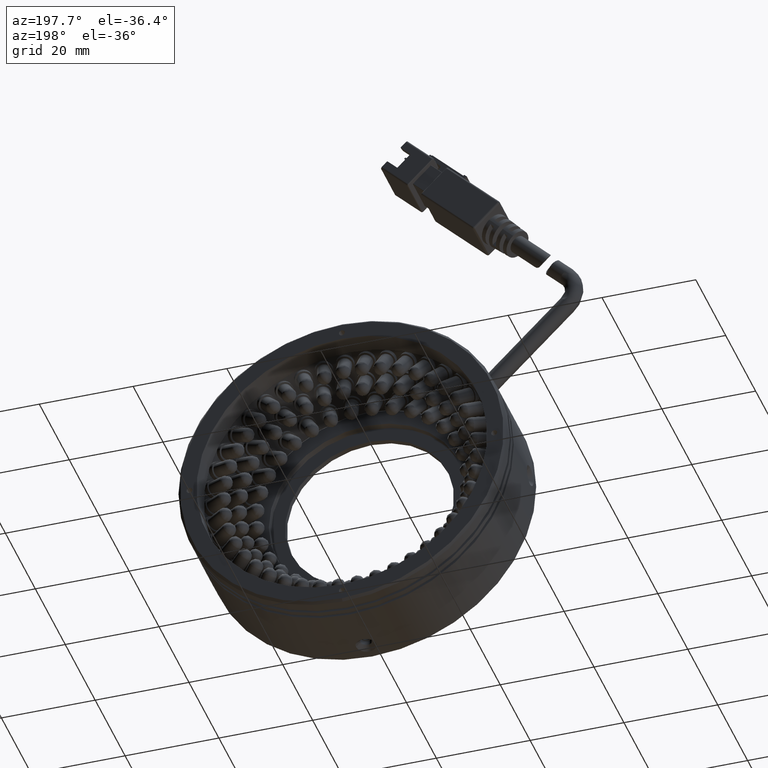
[diagram: clean part render]
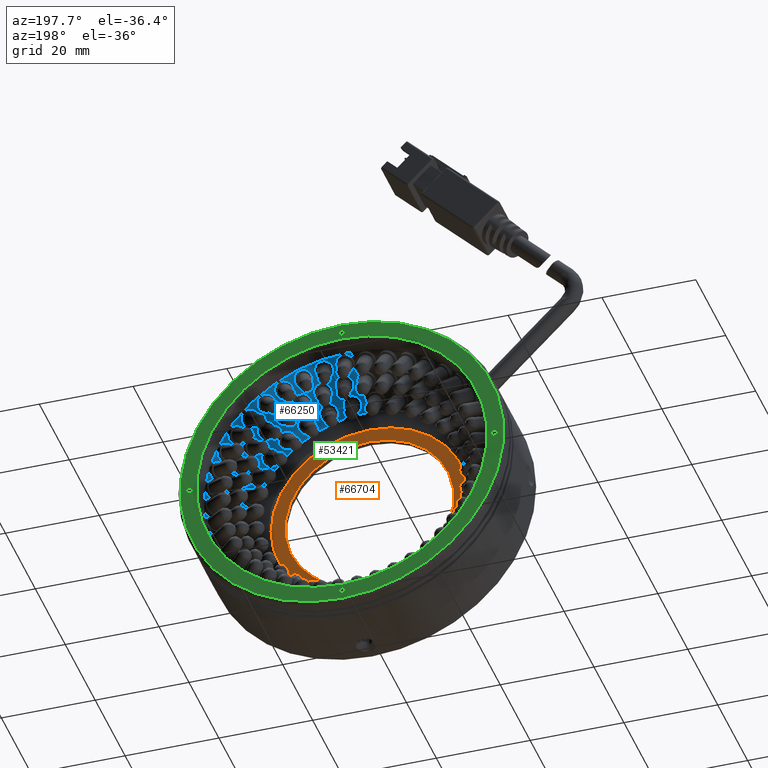
[diagram: same view with three faces highlighted in distinct colors, each labeled with its STEP entity id]
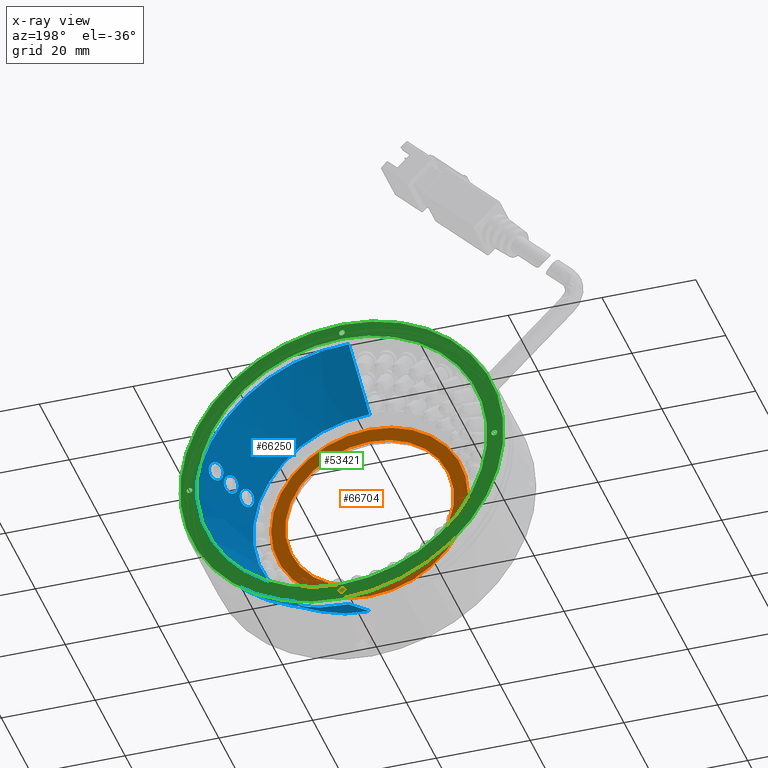
[diagram: x-ray of the same camera — body ghosted, the three highlighted faces saturated]
A machine part, auxiliary view with three faces highlighted in distinct colors.
The next image is the same camera in x-ray (body ghosted, the three faces saturated) — at least one of them is partly hidden behind the body in this view.
Their STEP definitions:

[orange] entity #66704 — the highlighted planar face has unit normal (0, -1, 0).
#512 = ORIENTED_EDGE ( 'NONE', *, *, #79822, .T. ) ;
#1383 = FACE_BOUND ( 'NONE', #87827, .T. ) ;
#4541 = CIRCLE ( 'NONE', #94823, 18.00000000000000400 ) ;
#6738 = CARTESIAN_POINT ( 'NONE',  ( -37.22376356038467500, -24.03693679055957900, 4.897574515044668800 ) ) ;
#10115 = CARTESIAN_POINT ( 'NONE',  ( -37.22376356038467500, -24.03693679055957900, -34.10242548495533300 ) ) ;
#10142 = CARTESIAN_POINT ( 'NONE',  ( -37.22376356038467500, -24.03693679055957900, -13.10242548495533300 ) ) ;
#13425 = EDGE_LOOP ( 'NONE', ( #83057, #88471 ) ) ;
#15766 = AXIS2_PLACEMENT_3D ( 'NONE', #41581, #97655, #49608 ) ;
#17502 = CARTESIAN_POINT ( 'NONE',  ( -37.22376356038467500, -24.03693679055957900, -13.10242548495533300 ) ) ;
#18263 = DIRECTION ( 'NONE',  ( 0.0000000000000000000, 0.0000000000000000000, -1.000000000000000000 ) ) ;
#21164 = CARTESIAN_POINT ( 'NONE',  ( -37.22376356038467500, -24.03693679055957900, 7.897574515044664300 ) ) ;
#24764 = VERTEX_POINT ( 'NONE', #10115 ) ;
#25601 = DIRECTION ( 'NONE',  ( 0.0000000000000000000, 0.0000000000000000000, -1.000000000000000000 ) ) ;
#28492 = CARTESIAN_POINT ( 'NONE',  ( -37.22376356038467500, -24.03693679055957900, -13.10242548495533300 ) ) ;
#35521 = AXIS2_PLACEMENT_3D ( 'NONE', #28492, #84573, #36556 ) ;
#36556 = DIRECTION ( 'NONE',  ( 0.0000000000000000000, 0.0000000000000000000, -1.000000000000000000 ) ) ;
#37112 = CARTESIAN_POINT ( 'NONE',  ( -58.22376356038467500, -24.03693679055957900, -13.10242548495533300 ) ) ;
#41494 = EDGE_CURVE ( 'NONE', #65738, #24764, #84756, .T. ) ;
#41581 = CARTESIAN_POINT ( 'NONE',  ( -37.22376356038467500, -24.03693679055957900, -13.10242548495533300 ) ) ;
#42549 = ORIENTED_EDGE ( 'NONE', *, *, #66487, .T. ) ;
#45172 = DIRECTION ( 'NONE',  ( 0.0000000000000000000, -0.0000000000000000000, -1.000000000000000000 ) ) ;
#46221 = AXIS2_PLACEMENT_3D ( 'NONE', #37112, #93161, #45172 ) ;
#47258 = CARTESIAN_POINT ( 'NONE',  ( -37.22376356038467500, -24.03693679055957900, -31.10242548495533700 ) ) ;
#49608 = DIRECTION ( 'NONE',  ( 0.0000000000000000000, 0.0000000000000000000, -1.000000000000000000 ) ) ;
#52876 = PLANE ( 'NONE',  #46221 ) ;
#58350 = CIRCLE ( 'NONE', #15766, 20.99999999999999600 ) ;
#61268 = VERTEX_POINT ( 'NONE', #47258 ) ;
#62929 = FACE_OUTER_BOUND ( 'NONE', #13425, .T. ) ;
#65414 = EDGE_CURVE ( 'NONE', #24764, #65738, #58350, .T. ) ;
#65738 = VERTEX_POINT ( 'NONE', #21164 ) ;
#66341 = DIRECTION ( 'NONE',  ( -0.0000000000000000000, -1.000000000000000000, -0.0000000000000000000 ) ) ;
#66357 = AXIS2_PLACEMENT_3D ( 'NONE', #17502, #73572, #25601 ) ;
#66487 = EDGE_CURVE ( 'NONE', #61268, #89555, #82863, .T. ) ;
#66704 = ADVANCED_FACE ( 'NONE', ( #1383, #62929 ), #52876, .F. ) ;
#73572 = DIRECTION ( 'NONE',  ( -0.0000000000000000000, -1.000000000000000000, -0.0000000000000000000 ) ) ;
#79822 = EDGE_CURVE ( 'NONE', #89555, #61268, #4541, .T. ) ;
#82863 = CIRCLE ( 'NONE', #66357, 18.00000000000000400 ) ;
#83057 = ORIENTED_EDGE ( 'NONE', *, *, #65414, .F. ) ;
#84573 = DIRECTION ( 'NONE',  ( -0.0000000000000000000, -1.000000000000000000, -0.0000000000000000000 ) ) ;
#84756 = CIRCLE ( 'NONE', #35521, 20.99999999999999600 ) ;
#87827 = EDGE_LOOP ( 'NONE', ( #42549, #512 ) ) ;
#88471 = ORIENTED_EDGE ( 'NONE', *, *, #41494, .F. ) ;
#89555 = VERTEX_POINT ( 'NONE', #6738 ) ;
#93161 = DIRECTION ( 'NONE',  ( 0.0000000000000000000, -1.000000000000000000, 0.0000000000000000000 ) ) ;
#94823 = AXIS2_PLACEMENT_3D ( 'NONE', #10142, #66341, #18263 ) ;
#97655 = DIRECTION ( 'NONE',  ( -0.0000000000000000000, -1.000000000000000000, -0.0000000000000000000 ) ) ;

[blue] entity #66250 — the highlighted conical surface has half-angle 30 deg.
#119 = CARTESIAN_POINT ( 'NONE',  ( -8.739880947575665400, -13.87750774357599000, -1.826419727712608400 ) ) ;
#281 = EDGE_CURVE ( 'NONE', #25436, #42817, #69618, .T. ) ;
#825 = CARTESIAN_POINT ( 'NONE',  ( -12.60728330870478300, -22.80869779404919100, -6.531338884192630100 ) ) ;
#1179 = CARTESIAN_POINT ( 'NONE',  ( -11.07150132760119600, -20.45683518125358800, -7.082872525403971900 ) ) ;
#2281 = EDGE_LOOP ( 'NONE', ( #47479, #41423 ) ) ;
#3036 = CARTESIAN_POINT ( 'NONE',  ( -8.867900524240134500, -15.63189835998557300, -4.535582452737599200 ) ) ;
#3387 = CARTESIAN_POINT ( 'NONE',  ( -10.18362075459634900, -16.76538536355328200, -2.713159425782246000 ) ) ;
#3450 = CARTESIAN_POINT ( 'NONE',  ( -37.22376356038467500, -23.93693679055959600, -37.92922040419845300 ) ) ;
#3736 = CARTESIAN_POINT ( 'NONE',  ( -10.92901948919881300, -18.71256114829929400, -3.946272673589756000 ) ) ;
#5179 = CARTESIAN_POINT ( 'NONE',  ( -8.511816934480458800, -14.96211874956041400, -4.376524862079755000 ) ) ;
#5192 = CARTESIAN_POINT ( 'NONE',  ( -12.46361717523232700, -21.11328696526424100, -3.779867101260965700 ) ) ;
#5254 = CARTESIAN_POINT ( 'NONE',  ( -10.80619209128891200, -18.90055973734911300, -4.656570934325704200 ) ) ;
#5523 = CARTESIAN_POINT ( 'NONE',  ( -6.951535951564639300, -12.62559690431884400, -4.924300941285840900 ) ) ;
#5535 = CARTESIAN_POINT ( 'NONE',  ( -13.01137501898977100, -22.78664006245179500, -5.129927685971869000 ) ) ;
#5600 = CARTESIAN_POINT ( 'NONE',  ( -9.411355381770601300, -17.38045875003232200, -6.384763199444242000 ) ) ;
#5947 = CARTESIAN_POINT ( 'NONE',  ( -8.796200044574497700, -15.74692090412090700, -5.015198748371726200 ) ) ;
#6021 = CIRCLE ( 'NONE', #52419, 32.82679491924312000 ) ;
#6848 = DIRECTION ( 'NONE',  ( 0.0000000000000000000, 0.0000000000000000000, -1.000000000000000000 ) ) ;
#7833 = CARTESIAN_POINT ( 'NONE',  ( -7.238289563124720200, -11.87646773622310500, -2.543890634460603800 ) ) ;
#8177 = CARTESIAN_POINT ( 'NONE',  ( -8.853455903908024300, -14.17965397209994400, -2.014162149194320200 ) ) ;
#8874 = CARTESIAN_POINT ( 'NONE',  ( -12.43871005122651700, -22.65560785068989000, -6.828651439797508400 ) ) ;
#9217 = CARTESIAN_POINT ( 'NONE',  ( -10.97527357027851700, -20.19557052773370400, -6.832326301883228800 ) ) ;
#10803 = EDGE_CURVE ( 'NONE', #64924, #83533, #67103, .T. ) ;
#11367 = CARTESIAN_POINT ( 'NONE',  ( -10.44196119625171100, -17.19071551909038900, -2.725879883457394700 ) ) ;
#11368 = CARTESIAN_POINT ( 'NONE',  ( -10.83491478007536900, -18.88318347884826300, -4.535604529954079000 ) ) ;
#11727 = CARTESIAN_POINT ( 'NONE',  ( -10.88645623700842300, -18.83729043205628200, -4.293769604146040000 ) ) ;
#12391 = EDGE_LOOP ( 'NONE', ( #33101, #85196 ) ) ;
#12900 = CARTESIAN_POINT ( 'NONE',  ( -11.02906259333316500, -19.63050069349715400, -5.365546695313018900 ) ) ;
#13232 = CARTESIAN_POINT ( 'NONE',  ( -8.334948660891084800, -14.81437667154405300, -4.671679628198138100 ) ) ;
#13242 = CARTESIAN_POINT ( 'NONE',  ( -12.64151798896770500, -21.43758115925772500, -3.838758719528584200 ) ) ;
#13300 = CARTESIAN_POINT ( 'NONE',  ( -10.83491478007536900, -18.88318347884826300, -4.535604529954079000 ) ) ;
#13582 = CARTESIAN_POINT ( 'NONE',  ( -6.860987213434952100, -12.36063885575566700, -4.675612541663583400 ) ) ;
#13589 = CARTESIAN_POINT ( 'NONE',  ( -12.95929705797020200, -22.88956307841174700, -5.485859871323306400 ) ) ;
#13647 = CARTESIAN_POINT ( 'NONE',  ( -9.233074450426379100, -17.05637292751037400, -6.325956600875479700 ) ) ;
#13985 = ORIENTED_EDGE ( 'NONE', *, *, #31011, .F. ) ;
#13998 = CARTESIAN_POINT ( 'NONE',  ( -8.840998057851202000, -15.64817344529392400, -4.657118569549587600 ) ) ;
#15933 = CARTESIAN_POINT ( 'NONE',  ( -7.428229221761161400, -12.01627222088110100, -2.253024514914973700 ) ) ;
#16284 = CARTESIAN_POINT ( 'NONE',  ( -8.928822298869880200, -14.45383034152049000, -2.257863045922480400 ) ) ;
#17005 = CARTESIAN_POINT ( 'NONE',  ( -12.12493232793792500, -22.29038655443641300, -7.225419750444430600 ) ) ;
#17327 = CARTESIAN_POINT ( 'NONE',  ( -10.91777981333198300, -19.97760580449259700, -6.537112049436104600 ) ) ;
#19125 = CARTESIAN_POINT ( 'NONE',  ( -9.007377143115451900, -15.61833281883109800, -4.060264868000970800 ) ) ;
#19484 = CARTESIAN_POINT ( 'NONE',  ( -10.60975398451057200, -17.51246660540419200, -2.806969973435182300 ) ) ;
#19837 = CARTESIAN_POINT ( 'NONE',  ( -10.83491478007536900, -18.88318347884826300, -4.535604529954079000 ) ) ;
#20350 = CARTESIAN_POINT ( 'NONE',  ( -37.22376356038467500, -10.08053033000837900, -13.10242548495533300 ) ) ;
#20988 = CARTESIAN_POINT ( 'NONE',  ( -11.15103831716061600, -19.65605408660995600, -5.013648408069423500 ) ) ;
#21310 = CARTESIAN_POINT ( 'NONE',  ( -8.008773047020374800, -14.45702297491176600, -5.065539900504439300 ) ) ;
#21323 = CARTESIAN_POINT ( 'NONE',  ( -12.79003052456387300, -21.75501594575085200, -3.964576743777202200 ) ) ;
#21381 = CARTESIAN_POINT ( 'NONE',  ( -10.64915194359016000, -18.88204477016092400, -5.127285817610521200 ) ) ;
#21649 = CARTESIAN_POINT ( 'NONE',  ( -6.810231198816904200, -12.13824062233152500, -4.382469374822384200 ) ) ;
#21718 = CARTESIAN_POINT ( 'NONE',  ( -9.077885832890368400, -16.74290330197431900, -6.198308452295618700 ) ) ;
#21931 = VERTEX_POINT ( 'NONE', #26710 ) ;
#24032 = CARTESIAN_POINT ( 'NONE',  ( -7.781609619073970300, -12.35710932981634300, -1.868096196349380500 ) ) ;
#24384 = CARTESIAN_POINT ( 'NONE',  ( -8.963272227565497000, -14.68613589355478600, -2.545652972331773300 ) ) ;
#25080 = CARTESIAN_POINT ( 'NONE',  ( -11.72513467833159200, -21.70573010128096300, -7.462122455044579700 ) ) ;
#25436 = VERTEX_POINT ( 'NONE', #11368 ) ;
#25438 = CARTESIAN_POINT ( 'NONE',  ( -10.90112476634757000, -19.80673047929643700, -6.203944362538209100 ) ) ;
#26105 = VECTOR ( 'NONE', #34883, 1000.000000000000000 ) ;
#26710 = CARTESIAN_POINT ( 'NONE',  ( -8.857851851272080500, -15.04536951588221600, -3.458917499663762400 ) ) ;
#27233 = CARTESIAN_POINT ( 'NONE',  ( -9.156714573996810100, -15.68216290976813100, -3.722509882268100900 ) ) ;
#27576 = CARTESIAN_POINT ( 'NONE',  ( -10.74788259490611800, -17.82785498399299200, -2.954897975873665800 ) ) ;
#28839 = VERTEX_POINT ( 'NONE', #35024 ) ;
#29045 = CARTESIAN_POINT ( 'NONE',  ( -8.827947764434654200, -15.06354256114486600, -3.579476012543592500 ) ) ;
#29056 = CARTESIAN_POINT ( 'NONE',  ( -11.30685288458715800, -19.74168720096015400, -4.686348423263758000 ) ) ;
#29392 = CARTESIAN_POINT ( 'NONE',  ( -7.599676135218410300, -13.87818598977165500, -5.300515232762707600 ) ) ;
#29402 = CARTESIAN_POINT ( 'NONE',  ( -12.90522073083825200, -22.05589059023470000, -4.153402780323741400 ) ) ;
#29463 = CARTESIAN_POINT ( 'NONE',  ( -10.49920391182877700, -18.79308332620420800, -5.456418537542369100 ) ) ;
#29742 = CARTESIAN_POINT ( 'NONE',  ( -6.801093587351917200, -11.96244364711914100, -4.051600957357604400 ) ) ;
#29813 = CARTESIAN_POINT ( 'NONE',  ( -8.950786361775472600, -16.44909785128471600, -6.006050396940844700 ) ) ;
#30053 = CARTESIAN_POINT ( 'NONE',  ( -6.884320410707353200, -11.79803620081498600, -3.458895674143138300 ) ) ;
#30670 = VERTEX_POINT ( 'NONE', #30053 ) ;
#31011 = EDGE_CURVE ( 'NONE', #64924, #42629, #87564, .T. ) ;
#32089 = CARTESIAN_POINT ( 'NONE',  ( -8.217912884373916400, -12.91940937831117600, -1.642070366619402300 ) ) ;
#32423 = CARTESIAN_POINT ( 'NONE',  ( -8.957203326535331900, -14.87116679829278700, -2.871519680230999700 ) ) ;
#33101 = ORIENTED_EDGE ( 'NONE', *, *, #281, .T. ) ;
#33107 = ORIENTED_EDGE ( 'NONE', *, *, #39610, .T. ) ;
#33142 = CARTESIAN_POINT ( 'NONE',  ( -11.47363247211986700, -21.27624040369975900, -7.451237633165088200 ) ) ;
#33292 = B_SPLINE_CURVE_WITH_KNOTS ( 'NONE', 3,
 ( #52898, #100959, #12900, #68983, #20988, #77058, #29056, #85149, #37131, #93184, #45196, #101309, #53249, #5192, #61303, #13242, #69319, #21323, #77402, #29402, #85499, #37465, #93548, #45555, #101646, #53590, #5535, #61640, #13589, #69667 ),
 .UNSPECIFIED., .F., .F.,
 ( 4, 2, 2, 2, 2, 2, 2, 2, 2, 2, 2, 2, 2, 2, 4 ),
 ( 0.005940476472405644200, 0.006311757764212208600, 0.006683039056018772900, 0.007054320347825336400, 0.007425601639631900800, 0.008168164223245028700, 0.008910726806858157400, 0.009282008098664723500, 0.009653289390471289600, 0.01002457068227785600, 0.01039585197408442000, 0.01076713326589098600, 0.01113841455769755100, 0.01150969584950411700, 0.01188097714131068300 ),
 .UNSPECIFIED. ) ;
#33494 = CARTESIAN_POINT ( 'NONE',  ( -10.92734173252657800, -19.69207227018145500, -5.851376381872256600 ) ) ;
#34883 = DIRECTION ( 'NONE',  ( 6.123233995736701900E-017, 0.8660254037844417100, -0.4999999999999947800 ) ) ;
#35024 = CARTESIAN_POINT ( 'NONE',  ( -12.93183671224410200, -22.90609988664232000, -5.607242029885863800 ) ) ;
#35243 = DIRECTION ( 'NONE',  ( 0.0000000000000000000, 0.8660254037844417100, 0.4999999999999947800 ) ) ;
#35325 = CARTESIAN_POINT ( 'NONE',  ( -9.334321844905343100, -15.80407495720009200, -3.419534017201082000 ) ) ;
#35670 = CARTESIAN_POINT ( 'NONE',  ( -10.84937954993924900, -18.11929515729573100, -3.161316746830988000 ) ) ;
#36631 = FACE_BOUND ( 'NONE', #81548, .T. ) ;
#37131 = CARTESIAN_POINT ( 'NONE',  ( -11.49125345438035200, -19.88525599283857700, -4.393720439474996900 ) ) ;
#37456 = CARTESIAN_POINT ( 'NONE',  ( -7.346692182824760700, -13.44960948789047500, -5.289784670401299800 ) ) ;
#37465 = CARTESIAN_POINT ( 'NONE',  ( -12.98326276377082600, -22.32809338902466200, -4.398556008482399800 ) ) ;
#37529 = CARTESIAN_POINT ( 'NONE',  ( -10.32630059893413100, -18.64276716343718800, -5.752636849745449900 ) ) ;
#37802 = CARTESIAN_POINT ( 'NONE',  ( -6.835062941288971000, -11.84269979061580900, -3.701426713261017000 ) ) ;
#37871 = CARTESIAN_POINT ( 'NONE',  ( -8.857560532325147000, -16.18589689547963700, -5.756448471637813900 ) ) ;
#39406 = VECTOR ( 'NONE', #35243, 1000.000000000000000 ) ;
#39610 = EDGE_CURVE ( 'NONE', #83533, #52682, #63264, .T. ) ;
#40165 = CARTESIAN_POINT ( 'NONE',  ( -8.476855933807440700, -13.34435468505563100, -1.654763280658904800 ) ) ;
#40494 = CARTESIAN_POINT ( 'NONE',  ( -8.911686564592518100, -14.99792439189853600, -3.217892473057579700 ) ) ;
#40656 = B_SPLINE_CURVE_WITH_KNOTS ( 'NONE', 3,
 ( #3036, #51050, #67224, #19125, #75236, #27233, #83308, #35325, #91332, #43409, #99473, #51409, #3387, #59489, #11367, #67553, #19484, #75591, #27576, #83636, #35670, #91679, #43727, #99827, #51743, #3736, #59829, #11727, #67884, #19837 ),
 .UNSPECIFIED., .F., .F.,
 ( 4, 2, 2, 2, 2, 2, 2, 2, 2, 2, 2, 2, 2, 2, 4 ),
 ( 0.005940255759117621400, 0.006311523052970052300, 0.006682790346822484000, 0.007054057640674914900, 0.007425324934527346600, 0.008167859522232217100, 0.008910394109937089200, 0.009281661403789521000, 0.009652928697641952700, 0.01002419599149438600, 0.01039546328534681800, 0.01076673057919925000, 0.01113799787305168300, 0.01150926516690411700, 0.01188053246075654800 ),
 .UNSPECIFIED. ) ;
#40870 = CARTESIAN_POINT ( 'NONE',  ( -12.79617469199723200, -22.91706480712437600, -6.083747285442243900 ) ) ;
#41213 = CARTESIAN_POINT ( 'NONE',  ( -11.30267126945376100, -20.95644652846260300, -7.368992416169615600 ) ) ;
#41423 = ORIENTED_EDGE ( 'NONE', *, *, #79162, .T. ) ;
#41560 = CARTESIAN_POINT ( 'NONE',  ( -10.97139746822790900, -19.65084598282548400, -5.607219600601271600 ) ) ;
#42170 = EDGE_CURVE ( 'NONE', #21931, #30670, #59532, .T. ) ;
#42629 = VERTEX_POINT ( 'NONE', #67846 ) ;
#42817 = VERTEX_POINT ( 'NONE', #94463 ) ;
#43409 = CARTESIAN_POINT ( 'NONE',  ( -9.602563064129928000, -16.04281922991336300, -3.074596707568936900 ) ) ;
#43629 = CARTESIAN_POINT ( 'NONE',  ( -37.22376356038467500, -10.08053033000837900, -13.10242548495533300 ) ) ;
#43727 = CARTESIAN_POINT ( 'NONE',  ( -10.91284621023043600, -18.38033501642151200, -3.422590549674593400 ) ) ;
#45186 = CARTESIAN_POINT ( 'NONE',  ( -8.711886608792658700, -15.06317891142425000, -3.932127785650084500 ) ) ;
#45196 = CARTESIAN_POINT ( 'NONE',  ( -11.83736247457644300, -20.23103244609193000, -4.006532682998652300 ) ) ;
#45546 = CARTESIAN_POINT ( 'NONE',  ( -7.176764788814402600, -13.12911087712302700, -5.208219379599232600 ) ) ;
#45555 = CARTESIAN_POINT ( 'NONE',  ( -13.02147757649042100, -22.55766394377527100, -4.688057890386377700 ) ) ;
#45613 = CARTESIAN_POINT ( 'NONE',  ( -10.00604419361575200, -18.28163047711662500, -6.147928757920592300 ) ) ;
#45885 = CARTESIAN_POINT ( 'NONE',  ( -6.884320410707353200, -11.79803620081498600, -3.458895674143138300 ) ) ;
#45961 = CARTESIAN_POINT ( 'NONE',  ( -8.803609847323453900, -15.96561677761261500, -5.462281588311950200 ) ) ;
#46461 = CARTESIAN_POINT ( 'NONE',  ( -7.028551355033677300, -11.78128089491210200, -2.985115146024835700 ) ) ;
#47479 = ORIENTED_EDGE ( 'NONE', *, *, #42170, .T. ) ;
#48186 = CARTESIAN_POINT ( 'NONE',  ( -8.644633349719949700, -13.66616273240122800, -1.735624884399956900 ) ) ;
#48537 = CARTESIAN_POINT ( 'NONE',  ( -8.857851851272080500, -15.04536951588221600, -3.458917499663762400 ) ) ;
#48548 = CARTESIAN_POINT ( 'NONE',  ( -12.93183671224410200, -22.90609988664232000, -5.607242029885863800 ) ) ;
#48899 = CARTESIAN_POINT ( 'NONE',  ( -12.65827504124743400, -22.84611691837745800, -6.424943239094665700 ) ) ;
#49253 = CARTESIAN_POINT ( 'NONE',  ( -11.15378041314236100, -20.64764683599598200, -7.217600836327473100 ) ) ;
#51050 = CARTESIAN_POINT ( 'NONE',  ( -8.894803085474391600, -15.61562321729900700, -4.414045907446978700 ) ) ;
#51409 = CARTESIAN_POINT ( 'NONE',  ( -10.03891066313493700, -16.56075870662781900, -2.760065474045580600 ) ) ;
#51642 = DIRECTION ( 'NONE',  ( 0.0000000000000000000, 0.0000000000000000000, -1.000000000000000000 ) ) ;
#51743 = CARTESIAN_POINT ( 'NONE',  ( -10.93591967968945000, -18.59682341810249900, -3.725675135836166200 ) ) ;
#52259 = DIRECTION ( 'NONE',  ( -0.0000000000000000000, 1.000000000000000000, 0.0000000000000000000 ) ) ;
#52419 = AXIS2_PLACEMENT_3D ( 'NONE', #43629, #99734, #51642 ) ;
#52682 = VERTEX_POINT ( 'NONE', #103030 ) ;
#52898 = CARTESIAN_POINT ( 'NONE',  ( -10.97139746822790900, -19.65084598282548400, -5.607219600601271600 ) ) ;
#52918 = CONICAL_SURFACE ( 'NONE', #64961, 32.82679491924312000, 0.5235987755982928200 ) ;
#53239 = CARTESIAN_POINT ( 'NONE',  ( -8.565604597876339100, -14.99772153178734900, -4.270895548798312900 ) ) ;
#53249 = CARTESIAN_POINT ( 'NONE',  ( -12.26864234529796600, -20.79672334065590500, -3.779185052719635300 ) ) ;
#53575 = CARTESIAN_POINT ( 'NONE',  ( -7.030876722604587800, -12.81833922291536100, -5.058013710927038000 ) ) ;
#53590 = CARTESIAN_POINT ( 'NONE',  ( -13.02038233001479900, -22.73921714616938800, -5.015951641370814500 ) ) ;
#53660 = CARTESIAN_POINT ( 'NONE',  ( -9.601408514183374300, -17.69998593289733400, -6.383752454611435900 ) ) ;
#53831 = CARTESIAN_POINT ( 'NONE',  ( -6.884320410707353200, -11.79803620081498600, -3.458895674143138300 ) ) ;
#53909 = EDGE_LOOP ( 'NONE', ( #13985, #54603, #33107, #87894 ) ) ;
#53989 = CARTESIAN_POINT ( 'NONE',  ( -8.790890391808977400, -15.79218372679773100, -5.130276471277671400 ) ) ;
#54603 = ORIENTED_EDGE ( 'NONE', *, *, #10803, .T. ) ;
#54880 = DIRECTION ( 'NONE',  ( 0.0000000000000000000, -1.000000000000000000, 0.0000000000000000000 ) ) ;
#55933 = CARTESIAN_POINT ( 'NONE',  ( -7.181140837824134600, -11.84290634287109100, -2.648417279948783100 ) ) ;
#56090 = B_SPLINE_CURVE_WITH_KNOTS ( 'NONE', 3,
 ( #53831, #86413, #94482, #46461, #102568, #55933, #7833, #64022, #15933, #72017, #24032, #80056, #32089, #88172, #40165, #96263, #48186, #119, #56287, #8177, #64359, #16284, #72348, #24384, #80399, #32423, #88500, #40494, #96606, #48537 ),
 .UNSPECIFIED., .F., .F.,
 ( 4, 2, 2, 2, 2, 2, 2, 2, 2, 2, 2, 2, 2, 2, 4 ),
 ( 0.005940089811716093600, 0.006311346577332131600, 0.006682603342948169500, 0.007053860108564208300, 0.007425116874180246300, 0.008167630405412323900, 0.008910143936644403200, 0.009281400702260439500, 0.009652657467876473900, 0.01002391423349250800, 0.01039517099910854500, 0.01076642776472458100, 0.01113768453034061700, 0.01150894129595665000, 0.01188019806157268600 ),
 .UNSPECIFIED. ) ;
#56287 = CARTESIAN_POINT ( 'NONE',  ( -8.782278177738991300, -13.98194799294504500, -1.883126649440312100 ) ) ;
#56782 = B_SPLINE_CURVE_WITH_KNOTS ( 'NONE', 3,
 ( #48548, #64729, #88846, #40870, #96962, #48899, #825, #56974, #8874, #65055, #17005, #73048, #25080, #81128, #33142, #89190, #41213, #97303, #49253, #1179, #57327, #9217, #65399, #17327, #73416, #25438, #81465, #33494, #89545, #41560 ),
 .UNSPECIFIED., .F., .F.,
 ( 4, 2, 2, 2, 2, 2, 2, 2, 2, 2, 2, 2, 2, 2, 4 ),
 ( 0.0000000000000000000, 0.0003712797795253538500, 0.0007425595590507076900, 0.001113839338576061600, 0.001485119118101415400, 0.002227678677152122000, 0.002970238236202829500, 0.003341518015728181300, 0.003712797795253533100, 0.004084077574778885300, 0.004455357354304236200, 0.004826637133829588800, 0.005197916913354940600, 0.005569196692880292400, 0.005940476472405644200 ),
 .UNSPECIFIED. ) ;
#56974 = CARTESIAN_POINT ( 'NONE',  ( -12.49770881124920200, -22.71373262077582600, -6.733018441041128500 ) ) ;
#57327 = CARTESIAN_POINT ( 'NONE',  ( -11.03564978644855000, -20.36638242309505000, -7.005951571853274600 ) ) ;
#57948 = FACE_OUTER_BOUND ( 'NONE', #53909, .T. ) ;
#59045 = CARTESIAN_POINT ( 'NONE',  ( -37.22376356038467500, -10.08053033000837900, 19.72436943428778400 ) ) ;
#59489 = CARTESIAN_POINT ( 'NONE',  ( -10.37907690419019400, -17.08163437869744100, -2.713844439079648600 ) ) ;
#59532 = B_SPLINE_CURVE_WITH_KNOTS ( 'NONE', 3,
 ( #85141, #29045, #93168, #45186, #101300, #53239, #5179, #61294, #13232, #69311, #21310, #77392, #29392, #85486, #37456, #93536, #45546, #101633, #53575, #5523, #61631, #13582, #69655, #21649, #77723, #29742, #85837, #37802, #93887, #45885 ),
 .UNSPECIFIED., .F., .F.,
 ( 4, 2, 2, 2, 2, 2, 2, 2, 2, 2, 2, 2, 2, 2, 4 ),
 ( 0.0000000000000000000, 0.0003712556132322550900, 0.0007425112264645101800, 0.001113766839696765200, 0.001485022452929020400, 0.002227533679393535600, 0.002970044905858051600, 0.003341300519090306500, 0.003712556132322561900, 0.004083811745554817200, 0.004455067358787071300, 0.004826322972019327100, 0.005197578585251582000, 0.005568834198483836900, 0.005940089811716093600 ),
 .UNSPECIFIED. ) ;
#59829 = CARTESIAN_POINT ( 'NONE',  ( -10.91904154981445500, -18.76064610886515600, -4.059886663788177000 ) ) ;
#61294 = CARTESIAN_POINT ( 'NONE',  ( -8.396706192782659200, -14.87073381244779900, -4.576739450438740400 ) ) ;
#61303 = CARTESIAN_POINT ( 'NONE',  ( -12.52641369816806200, -21.22242298655099200, -3.791936002134254300 ) ) ;
#61366 = CARTESIAN_POINT ( 'NONE',  ( -10.77215249866695700, -18.90675508400951800, -4.775699695787689200 ) ) ;
#61631 = CARTESIAN_POINT ( 'NONE',  ( -6.917415154974694500, -12.53401571494767300, -4.847953657192131300 ) ) ;
#61640 = CARTESIAN_POINT ( 'NONE',  ( -12.98093418629605700, -22.86183754016998300, -5.364583545478951400 ) ) ;
#61701 = CARTESIAN_POINT ( 'NONE',  ( -9.349170443654768900, -17.27095219960765600, -6.372947375612600500 ) ) ;
#62067 = CARTESIAN_POINT ( 'NONE',  ( -8.821146971874705800, -15.67489499653628300, -4.778918423771942900 ) ) ;
#63264 = LINE ( 'NONE', #59045, #39406 ) ;
#64022 = CARTESIAN_POINT ( 'NONE',  ( -7.361594574603075500, -11.96287550608669600, -2.346365803714186300 ) ) ;
#64359 = CARTESIAN_POINT ( 'NONE',  ( -8.882807419399149800, -14.27413211350214100, -2.088944171607172200 ) ) ;
#64729 = CARTESIAN_POINT ( 'NONE',  ( -12.90437647836788000, -22.92263662751613800, -5.728623694041725200 ) ) ;
#64924 = VERTEX_POINT ( 'NONE', #3450 ) ;
#64961 = AXIS2_PLACEMENT_3D ( 'NONE', #20350, #52259, #76441 ) ;
#65055 = CARTESIAN_POINT ( 'NONE',  ( -12.25708302004705500, -22.45814088714822900, -7.086171275392440600 ) ) ;
#65399 = CARTESIAN_POINT ( 'NONE',  ( -10.95170340361716500, -20.11787555406222000, -6.738299421683501000 ) ) ;
#66250 = ADVANCED_FACE ( 'NONE', ( #57948, #103155, #98085, #36631 ), #52918, .F. ) ;
#67103 = CIRCLE ( 'NONE', #101862, 24.82679491924311700 ) ;
#67224 = CARTESIAN_POINT ( 'NONE',  ( -8.928177660683779500, -15.60983028909972400, -4.294708815332623600 ) ) ;
#67553 = CARTESIAN_POINT ( 'NONE',  ( -10.55709455306796800, -17.40588057306633700, -2.772571431988047200 ) ) ;
#67846 = CARTESIAN_POINT ( 'NONE',  ( -37.22376356038466800, -10.08053033000837900, -45.92922040419845300 ) ) ;
#67884 = CARTESIAN_POINT ( 'NONE',  ( -10.86363757012438900, -18.86580715908697700, -4.414637699112347500 ) ) ;
#68214 = CARTESIAN_POINT ( 'NONE',  ( -10.97139746822790900, -19.65084598282548400, -5.607219600601271600 ) ) ;
#68983 = CARTESIAN_POINT ( 'NONE',  ( -11.10580327208902500, -19.64063776084752200, -5.130341115855539900 ) ) ;
#69311 = CARTESIAN_POINT ( 'NONE',  ( -8.145574671963622400, -14.62184594158522600, -4.927322933910614800 ) ) ;
#69319 = CARTESIAN_POINT ( 'NONE',  ( -12.69423651262165500, -21.54411215948580200, -3.873254882589696200 ) ) ;
#69381 = CARTESIAN_POINT ( 'NONE',  ( -10.69391506030775000, -18.89767060550029500, -5.010444887128729300 ) ) ;
#69618 = B_SPLINE_CURVE_WITH_KNOTS ( 'NONE', 3,
 ( #13300, #5254, #61366, #69381, #21381, #77468, #29463, #85565, #37529, #93608, #45613, #101706, #53660, #5600, #61701, #13647, #69722, #21718, #77793, #29813, #85916, #37871, #93956, #45961, #102046, #53989, #5947, #62067, #13998, #70073 ),
 .UNSPECIFIED., .F., .F.,
 ( 4, 2, 2, 2, 2, 2, 2, 2, 2, 2, 2, 2, 2, 2, 4 ),
 ( 0.0000000000000000000, 0.0003712659849448562700, 0.0007425319698897125400, 0.001113797954834568800, 0.001485063939779425100, 0.002227595909669132300, 0.002970127879558839700, 0.003341393864503687200, 0.003712659849448535000, 0.004083925834393382900, 0.004455191819338230800, 0.004826457804283077800, 0.005197723789227925600, 0.005568989774172773500, 0.005940255759117621400 ),
 .UNSPECIFIED. ) ;
#69655 = CARTESIAN_POINT ( 'NONE',  ( -6.839563509695442400, -12.28151117929002500, -4.582233767604753500 ) ) ;
#69659 = ORIENTED_EDGE ( 'NONE', *, *, #98533, .T. ) ;
#69667 = CARTESIAN_POINT ( 'NONE',  ( -12.93183671224410200, -22.90609988664232000, -5.607242029885863800 ) ) ;
#69722 = CARTESIAN_POINT ( 'NONE',  ( -9.178785874775750000, -16.95077291668531300, -6.291049512819571800 ) ) ;
#70073 = CARTESIAN_POINT ( 'NONE',  ( -8.867900524240134500, -15.63189835998557300, -4.535582452737599200 ) ) ;
#72017 = CARTESIAN_POINT ( 'NONE',  ( -7.633052177853025800, -12.19942520458067900, -2.002449893236559300 ) ) ;
#72348 = CARTESIAN_POINT ( 'NONE',  ( -8.944768004992390300, -14.53629007301764300, -2.349446942484710200 ) ) ;
#73048 = CARTESIAN_POINT ( 'NONE',  ( -11.86037169673522100, -21.91611400893726700, -7.412445310141694500 ) ) ;
#73416 = CARTESIAN_POINT ( 'NONE',  ( -10.90738571019338100, -19.91438606634540100, -6.428608702081743500 ) ) ;
#75236 = CARTESIAN_POINT ( 'NONE',  ( -9.053803211517278600, -15.63295220664439900, -3.943945225062063500 ) ) ;
#75591 = CARTESIAN_POINT ( 'NONE',  ( -10.70527167690484300, -17.72359049293682200, -2.898028413879833600 ) ) ;
#76441 = DIRECTION ( 'NONE',  ( 0.0000000000000000000, 0.0000000000000000000, 1.000000000000000000 ) ) ;
#77058 = CARTESIAN_POINT ( 'NONE',  ( -11.25172484133289100, -19.70675697444111300, -4.791519991838314700 ) ) ;
#77392 = CARTESIAN_POINT ( 'NONE',  ( -7.737266284864238800, -14.08710321826613800, -5.251193494577281100 ) ) ;
#77402 = CARTESIAN_POINT ( 'NONE',  ( -12.83285644439020600, -21.85910386375297800, -4.021607577732284600 ) ) ;
#77468 = CARTESIAN_POINT ( 'NONE',  ( -10.55165342016369400, -18.82956148342834300, -5.350411272043534600 ) ) ;
#77661 = CARTESIAN_POINT ( 'NONE',  ( -37.22376356038467500, -23.93693679055959600, 11.72436943428778200 ) ) ;
#77723 = CARTESIAN_POINT ( 'NONE',  ( -6.802305019039219600, -12.07341497643465700, -4.274737094338211000 ) ) ;
#77793 = CARTESIAN_POINT ( 'NONE',  ( -9.031504377540054300, -16.64092692672496200, -6.140262415025436100 ) ) ;
#79050 = VERTEX_POINT ( 'NONE', #68214 ) ;
#79162 = EDGE_CURVE ( 'NONE', #30670, #21931, #56090, .T. ) ;
#79404 = EDGE_CURVE ( 'NONE', #42629, #52682, #6021, .T. ) ;
#80056 = CARTESIAN_POINT ( 'NONE',  ( -8.072558764443783700, -12.71521586574073100, -1.688836050723104200 ) ) ;
#80399 = CARTESIAN_POINT ( 'NONE',  ( -8.965787244733904900, -14.75424601966168400, -2.651603906791665000 ) ) ;
#81128 = CARTESIAN_POINT ( 'NONE',  ( -11.53577057863968300, -21.38577568265098700, -7.463110352227115400 ) ) ;
#81465 = CARTESIAN_POINT ( 'NONE',  ( -10.90509387028696000, -19.76233906551966500, -6.088470636970227700 ) ) ;
#81548 = EDGE_LOOP ( 'NONE', ( #83220, #69659 ) ) ;
#82837 = CARTESIAN_POINT ( 'NONE',  ( -37.22376356038466800, -10.08053033000837900, -45.92922040419845300 ) ) ;
#83220 = ORIENTED_EDGE ( 'NONE', *, *, #90130, .T. ) ;
#83308 = CARTESIAN_POINT ( 'NONE',  ( -9.212873022827649200, -15.71639879255905300, -3.617661399379305600 ) ) ;
#83533 = VERTEX_POINT ( 'NONE', #77661 ) ;
#83636 = CARTESIAN_POINT ( 'NONE',  ( -10.81965079124455500, -18.02510188572615800, -3.086314700279045600 ) ) ;
#85141 = CARTESIAN_POINT ( 'NONE',  ( -8.857851851272080500, -15.04536951588221600, -3.458917499663762400 ) ) ;
#85149 = CARTESIAN_POINT ( 'NONE',  ( -11.42638338692029600, -19.83066129004162200, -4.487617565017103500 ) ) ;
#85196 = ORIENTED_EDGE ( 'NONE', *, *, #88829, .T. ) ;
#85486 = CARTESIAN_POINT ( 'NONE',  ( -7.408940935999692300, -13.55907932401382300, -5.301546526510617400 ) ) ;
#85499 = CARTESIAN_POINT ( 'NONE',  ( -12.93533088519109600, -22.14979847055307600, -4.228623500848698300 ) ) ;
#85565 = CARTESIAN_POINT ( 'NONE',  ( -10.38674042300878000, -18.69997469035209300, -5.657355032862384700 ) ) ;
#85837 = CARTESIAN_POINT ( 'NONE',  ( -6.807631024408758300, -11.91637024576157000, -3.936911142543776600 ) ) ;
#85916 = CARTESIAN_POINT ( 'NONE',  ( -8.915851543193198800, -16.35805227840360500, -5.929421002153609300 ) ) ;
#86413 = CARTESIAN_POINT ( 'NONE',  ( -6.912463408065116600, -11.78093338916286800, -3.337758129791516200 ) ) ;
#87564 = LINE ( 'NONE', #82837, #26105 ) ;
#87894 = ORIENTED_EDGE ( 'NONE', *, *, #79404, .F. ) ;
#88172 = CARTESIAN_POINT ( 'NONE',  ( -8.413876169111896200, -13.23533109045160000, -1.642760635693757200 ) ) ;
#88500 = CARTESIAN_POINT ( 'NONE',  ( -8.946301022630679600, -14.91989112843505400, -2.984773319623366100 ) ) ;
#88829 = EDGE_CURVE ( 'NONE', #42817, #25436, #40656, .T. ) ;
#88846 = CARTESIAN_POINT ( 'NONE',  ( -12.87165831328342400, -22.92795880389946800, -5.848168776107151200 ) ) ;
#89190 = CARTESIAN_POINT ( 'NONE',  ( -11.35727065372145500, -21.06184417489251400, -7.404044652462973300 ) ) ;
#89545 = CARTESIAN_POINT ( 'NONE',  ( -10.94582766582691100, -19.66624429292021900, -5.729161943084554800 ) ) ;
#90130 = EDGE_CURVE ( 'NONE', #28839, #79050, #56782, .T. ) ;
#91332 = CARTESIAN_POINT ( 'NONE',  ( -9.400085439719381600, -15.85806614120600600, -3.325914140899783900 ) ) ;
#91679 = CARTESIAN_POINT ( 'NONE',  ( -10.89634450590326500, -18.29829390896041400, -3.330743022937286300 ) ) ;
#93168 = CARTESIAN_POINT ( 'NONE',  ( -8.792677655818005500, -15.07056238026987500, -3.698196938539488600 ) ) ;
#93184 = CARTESIAN_POINT ( 'NONE',  ( -11.69134171127243600, -20.07162278838894300, -4.141665284602559900 ) ) ;
#93536 = CARTESIAN_POINT ( 'NONE',  ( -7.230793995618748600, -13.23488507271386000, -5.242987335892967100 ) ) ;
#93548 = CARTESIAN_POINT ( 'NONE',  ( -13.00033182739299100, -22.40970762220880600, -4.490662082762670000 ) ) ;
#93608 = CARTESIAN_POINT ( 'NONE',  ( -10.14062590243303900, -18.44786232036542000, -6.009204737600254200 ) ) ;
#93887 = CARTESIAN_POINT ( 'NONE',  ( -6.856177500705681100, -11.81513895937984400, -3.580032842482859600 ) ) ;
#93956 = CARTESIAN_POINT ( 'NONE',  ( -8.835120618625861500, -16.10745174363107800, -5.662748313610089600 ) ) ;
#94463 = CARTESIAN_POINT ( 'NONE',  ( -8.867900524240134500, -15.63189835998557300, -4.535582452737599200 ) ) ;
#94482 = CARTESIAN_POINT ( 'NONE',  ( -6.947035873999397800, -11.77433763085074700, -3.218807825940104300 ) ) ;
#96263 = CARTESIAN_POINT ( 'NONE',  ( -8.592029168678237700, -13.55952224738744700, -1.701324057992627000 ) ) ;
#96606 = CARTESIAN_POINT ( 'NONE',  ( -8.887756030932303400, -15.02719641421012400, -3.338358612568243200 ) ) ;
#96962 = CARTESIAN_POINT ( 'NONE',  ( -12.75285995087290300, -22.90049156454726300, -6.201010446595689500 ) ) ;
#97303 = CARTESIAN_POINT ( 'NONE',  ( -11.20081004975191000, -20.74919422721202600, -7.275873687865863600 ) ) ;
#98085 = FACE_BOUND ( 'NONE', #12391, .T. ) ;
#98533 = EDGE_CURVE ( 'NONE', #79050, #28839, #33292, .T. ) ;
#99473 = CARTESIAN_POINT ( 'NONE',  ( -9.749851814198336800, -16.20137015629026000, -2.939851182665041300 ) ) ;
#99734 = DIRECTION ( 'NONE',  ( 0.0000000000000000000, -1.000000000000000000, 0.0000000000000000000 ) ) ;
#99827 = CARTESIAN_POINT ( 'NONE',  ( -10.93265178466329800, -18.52924481986892100, -3.619392546734451000 ) ) ;
#100959 = CARTESIAN_POINT ( 'NONE',  ( -10.99696737477875200, -19.63544761001100600, -5.485276761427555500 ) ) ;
#101300 = CARTESIAN_POINT ( 'NONE',  ( -8.665785655200442900, -15.04843982922754700, -4.048557275411843300 ) ) ;
#101309 = CARTESIAN_POINT ( 'NONE',  ( -12.12455415522020500, -20.59167873058228800, -3.826228933152606300 ) ) ;
#101633 = CARTESIAN_POINT ( 'NONE',  ( -7.076691604798039500, -12.92069682584179600, -5.115840628717760000 ) ) ;
#101646 = CARTESIAN_POINT ( 'NONE',  ( -13.02552537956600000, -22.62469928756747000, -4.794673379721226400 ) ) ;
#101706 = CARTESIAN_POINT ( 'NONE',  ( -9.737863919355682200, -17.90961333353110200, -6.334256419324483500 ) ) ;
#101862 = AXIS2_PLACEMENT_3D ( 'NONE', #102965, #54880, #6848 ) ;
#102046 = CARTESIAN_POINT ( 'NONE',  ( -8.794509970769883700, -15.90156146470272200, -5.354169306972243800 ) ) ;
#102568 = CARTESIAN_POINT ( 'NONE',  ( -7.076106692341271700, -11.79513577520816800, -2.869164217522610600 ) ) ;
#102965 = CARTESIAN_POINT ( 'NONE',  ( -37.22376356038467500, -23.93693679055959600, -13.10242548495533300 ) ) ;
#103030 = CARTESIAN_POINT ( 'NONE',  ( -37.22376356038467500, -10.08053033000837900, 19.72436943428778400 ) ) ;
#103155 = FACE_BOUND ( 'NONE', #2281, .T. ) ;

[green] entity #53421 — the highlighted planar face has unit normal (0, -1, 0).
#684 = CARTESIAN_POINT ( 'NONE',  ( -37.22376356038466100, -5.536936790559605200, -46.22742548495531900 ) ) ;
#1187 = DIRECTION ( 'NONE',  ( 0.0000000000000000000, -1.000000000000000000, 0.0000000000000000000 ) ) ;
#1268 = EDGE_LOOP ( 'NONE', ( #86580, #57453 ) ) ;
#1670 = AXIS2_PLACEMENT_3D ( 'NONE', #11058, #67253, #19161 ) ;
#1823 = EDGE_CURVE ( 'NONE', #74148, #78452, #85527, .T. ) ;
#2103 = AXIS2_PLACEMENT_3D ( 'NONE', #32772, #88836, #40859 ) ;
#2880 = DIRECTION ( 'NONE',  ( 0.0000000000000000000, -0.0000000000000000000, -1.000000000000000000 ) ) ;
#3053 = FACE_OUTER_BOUND ( 'NONE', #83973, .T. ) ;
#3682 = DIRECTION ( 'NONE',  ( -0.0000000000000000000, -1.000000000000000000, -0.0000000000000000000 ) ) ;
#5415 = ORIENTED_EDGE ( 'NONE', *, *, #11442, .T. ) ;
#9758 = ORIENTED_EDGE ( 'NONE', *, *, #96444, .T. ) ;
#10586 = EDGE_CURVE ( 'NONE', #84887, #31460, #78294, .T. ) ;
#11058 = CARTESIAN_POINT ( 'NONE',  ( -37.22376356038466100, -5.536936790559605200, -45.60242548495531900 ) ) ;
#11442 = EDGE_CURVE ( 'NONE', #16494, #88804, #64472, .T. ) ;
#12653 = CARTESIAN_POINT ( 'NONE',  ( -37.22376356038466100, -5.536936790559607000, -13.10242548495532100 ) ) ;
#13201 = AXIS2_PLACEMENT_3D ( 'NONE', #41223, #97316, #49262 ) ;
#15834 = ORIENTED_EDGE ( 'NONE', *, *, #97413, .T. ) ;
#16494 = VERTEX_POINT ( 'NONE', #65341 ) ;
#17008 = VERTEX_POINT ( 'NONE', #25251 ) ;
#17761 = CIRCLE ( 'NONE', #100828, 34.50000000000000700 ) ;
#17797 = CIRCLE ( 'NONE', #96035, 34.50000000000000700 ) ;
#19074 = CIRCLE ( 'NONE', #20769, 0.6250000000000005600 ) ;
#19106 = CARTESIAN_POINT ( 'NONE',  ( -37.22376356038466100, -5.536936790559604300, -13.10242548495532100 ) ) ;
#19161 = DIRECTION ( 'NONE',  ( 0.0000000000000000000, 0.0000000000000000000, 1.000000000000000000 ) ) ;
#20362 = AXIS2_PLACEMENT_3D ( 'NONE', #98953, #50919, #2880 ) ;
#20765 = DIRECTION ( 'NONE',  ( 0.0000000000000000000, 0.0000000000000000000, -1.000000000000000000 ) ) ;
#20769 = AXIS2_PLACEMENT_3D ( 'NONE', #27117, #83167, #35192 ) ;
#22168 = CARTESIAN_POINT ( 'NONE',  ( -69.72376356038466800, -5.536936790559605200, -13.10242548495566000 ) ) ;
#23564 = DIRECTION ( 'NONE',  ( 0.0000000000000000000, -1.000000000000000000, 0.0000000000000000000 ) ) ;
#24397 = FACE_BOUND ( 'NONE', #1268, .T. ) ;
#25251 = CARTESIAN_POINT ( 'NONE',  ( -69.72376356038466800, -5.536936790559605200, -13.72742548495566000 ) ) ;
#26386 = AXIS2_PLACEMENT_3D ( 'NONE', #19106, #75213, #27212 ) ;
#27117 = CARTESIAN_POINT ( 'NONE',  ( -37.22376356038466100, -5.536936790559605200, 19.39757451504468100 ) ) ;
#27212 = DIRECTION ( 'NONE',  ( 0.0000000000000000000, 0.0000000000000000000, -1.000000000000000000 ) ) ;
#30230 = AXIS2_PLACEMENT_3D ( 'NONE', #49260, #1187, #57336 ) ;
#30255 = DIRECTION ( 'NONE',  ( 0.0000000000000000000, 0.0000000000000000000, 1.000000000000000000 ) ) ;
#31460 = VERTEX_POINT ( 'NONE', #684 ) ;
#31836 = CARTESIAN_POINT ( 'NONE',  ( -37.22376356038466100, -5.536936790559604300, -44.10242548495531900 ) ) ;
#32772 = CARTESIAN_POINT ( 'NONE',  ( -37.22376356038466100, -5.536936790559605200, -45.60242548495531900 ) ) ;
#34087 = EDGE_CURVE ( 'NONE', #96387, #43157, #17761, .T. ) ;
#34166 = CARTESIAN_POINT ( 'NONE',  ( -4.723763560384661300, -5.536936790559605200, -13.10242548495520700 ) ) ;
#34480 = FACE_BOUND ( 'NONE', #63115, .T. ) ;
#35192 = DIRECTION ( 'NONE',  ( 0.0000000000000000000, 0.0000000000000000000, 1.000000000000000000 ) ) ;
#36759 = CIRCLE ( 'NONE', #2103, 0.6250000000000005600 ) ;
#37007 = EDGE_CURVE ( 'NONE', #88804, #16494, #19074, .T. ) ;
#37173 = EDGE_CURVE ( 'NONE', #43157, #96387, #17797, .T. ) ;
#38863 = DIRECTION ( 'NONE',  ( 0.0000000000000000000, -1.000000000000000000, 0.0000000000000000000 ) ) ;
#40859 = DIRECTION ( 'NONE',  ( 0.0000000000000000000, 0.0000000000000000000, 1.000000000000000000 ) ) ;
#41223 = CARTESIAN_POINT ( 'NONE',  ( -4.723763560384661300, -5.536936790559605200, -13.10242548495520700 ) ) ;
#41225 = AXIS2_PLACEMENT_3D ( 'NONE', #34166, #90176, #42223 ) ;
#42008 = CARTESIAN_POINT ( 'NONE',  ( -37.22376356038466100, -5.536936790559605200, 20.02257451504468100 ) ) ;
#42155 = AXIS2_PLACEMENT_3D ( 'NONE', #22168, #78266, #30255 ) ;
#42223 = DIRECTION ( 'NONE',  ( 0.0000000000000000000, 0.0000000000000000000, 1.000000000000000000 ) ) ;
#43157 = VERTEX_POINT ( 'NONE', #66730 ) ;
#44493 = CARTESIAN_POINT ( 'NONE',  ( -37.22376356038466100, -5.536936790559605200, -44.97742548495531900 ) ) ;
#45366 = EDGE_CURVE ( 'NONE', #78452, #74148, #51094, .T. ) ;
#45730 = CARTESIAN_POINT ( 'NONE',  ( -4.723763560384661300, -5.536936790559605200, -13.72742548495520700 ) ) ;
#45775 = ORIENTED_EDGE ( 'NONE', *, *, #101727, .T. ) ;
#46069 = CIRCLE ( 'NONE', #26386, 31.00000000000000000 ) ;
#46673 = CARTESIAN_POINT ( 'NONE',  ( -37.22376356038465400, -5.536936790559604300, 17.89757451504468100 ) ) ;
#48585 = EDGE_LOOP ( 'NONE', ( #53888, #5415 ) ) ;
#48824 = AXIS2_PLACEMENT_3D ( 'NONE', #71545, #23564, #79612 ) ;
#49260 = CARTESIAN_POINT ( 'NONE',  ( -69.72376356038466800, -5.536936790559605200, -13.10242548495566000 ) ) ;
#49262 = DIRECTION ( 'NONE',  ( 0.0000000000000000000, 0.0000000000000000000, 1.000000000000000000 ) ) ;
#50919 = DIRECTION ( 'NONE',  ( 0.0000000000000000000, -1.000000000000000000, 0.0000000000000000000 ) ) ;
#51094 = CIRCLE ( 'NONE', #13201, 0.6250000000000005600 ) ;
#51699 = CARTESIAN_POINT ( 'NONE',  ( -37.22376356038466100, -5.536936790559604300, -13.10242548495532100 ) ) ;
#52390 = EDGE_LOOP ( 'NONE', ( #9758, #53068 ) ) ;
#52565 = EDGE_LOOP ( 'NONE', ( #15834, #72002 ) ) ;
#53068 = ORIENTED_EDGE ( 'NONE', *, *, #82466, .T. ) ;
#53421 = ADVANCED_FACE ( 'NONE', ( #95930, #3053, #34480, #24397, #85863, #64554 ), #66746, .F. ) ;
#53888 = ORIENTED_EDGE ( 'NONE', *, *, #37007, .T. ) ;
#54575 = CIRCLE ( 'NONE', #59258, 31.00000000000000000 ) ;
#57336 = DIRECTION ( 'NONE',  ( 0.0000000000000000000, 0.0000000000000000000, 1.000000000000000000 ) ) ;
#57453 = ORIENTED_EDGE ( 'NONE', *, *, #1823, .T. ) ;
#58206 = CARTESIAN_POINT ( 'NONE',  ( -4.723763560384661300, -5.536936790559605200, -12.47742548495520700 ) ) ;
#59258 = AXIS2_PLACEMENT_3D ( 'NONE', #51699, #3682, #59792 ) ;
#59792 = DIRECTION ( 'NONE',  ( 0.0000000000000000000, 0.0000000000000000000, -1.000000000000000000 ) ) ;
#62796 = CIRCLE ( 'NONE', #30230, 0.6250000000000005600 ) ;
#62919 = VERTEX_POINT ( 'NONE', #92441 ) ;
#63115 = EDGE_LOOP ( 'NONE', ( #88383, #45775 ) ) ;
#63660 = CIRCLE ( 'NONE', #42155, 0.6250000000000005600 ) ;
#64472 = CIRCLE ( 'NONE', #48824, 0.6250000000000005600 ) ;
#64554 = FACE_BOUND ( 'NONE', #52390, .T. ) ;
#65341 = CARTESIAN_POINT ( 'NONE',  ( -37.22376356038466100, -5.536936790559605200, 18.77257451504468100 ) ) ;
#66730 = CARTESIAN_POINT ( 'NONE',  ( -37.22376356038465400, -5.536936790559607000, 21.39757451504468800 ) ) ;
#66746 = PLANE ( 'NONE',  #20362 ) ;
#67253 = DIRECTION ( 'NONE',  ( 0.0000000000000000000, -1.000000000000000000, 0.0000000000000000000 ) ) ;
#68761 = DIRECTION ( 'NONE',  ( 0.0000000000000000000, -1.000000000000000000, 0.0000000000000000000 ) ) ;
#69095 = ORIENTED_EDGE ( 'NONE', *, *, #37173, .F. ) ;
#71545 = CARTESIAN_POINT ( 'NONE',  ( -37.22376356038466100, -5.536936790559605200, 19.39757451504468100 ) ) ;
#72002 = ORIENTED_EDGE ( 'NONE', *, *, #93590, .T. ) ;
#74148 = VERTEX_POINT ( 'NONE', #45730 ) ;
#74720 = VERTEX_POINT ( 'NONE', #46673 ) ;
#75213 = DIRECTION ( 'NONE',  ( -0.0000000000000000000, -1.000000000000000000, -0.0000000000000000000 ) ) ;
#78266 = DIRECTION ( 'NONE',  ( 0.0000000000000000000, -1.000000000000000000, 0.0000000000000000000 ) ) ;
#78294 = CIRCLE ( 'NONE', #1670, 0.6250000000000005600 ) ;
#78452 = VERTEX_POINT ( 'NONE', #58206 ) ;
#78719 = VERTEX_POINT ( 'NONE', #31836 ) ;
#79612 = DIRECTION ( 'NONE',  ( 0.0000000000000000000, 0.0000000000000000000, 1.000000000000000000 ) ) ;
#82466 = EDGE_CURVE ( 'NONE', #17008, #62919, #63660, .T. ) ;
#83167 = DIRECTION ( 'NONE',  ( 0.0000000000000000000, -1.000000000000000000, 0.0000000000000000000 ) ) ;
#83973 = EDGE_LOOP ( 'NONE', ( #86782, #69095 ) ) ;
#84887 = VERTEX_POINT ( 'NONE', #44493 ) ;
#85527 = CIRCLE ( 'NONE', #41225, 0.6250000000000005600 ) ;
#85863 = FACE_BOUND ( 'NONE', #48585, .T. ) ;
#86580 = ORIENTED_EDGE ( 'NONE', *, *, #45366, .T. ) ;
#86782 = ORIENTED_EDGE ( 'NONE', *, *, #34087, .F. ) ;
#86896 = CARTESIAN_POINT ( 'NONE',  ( -37.22376356038466100, -5.536936790559607000, -13.10242548495532100 ) ) ;
#88383 = ORIENTED_EDGE ( 'NONE', *, *, #10586, .T. ) ;
#88804 = VERTEX_POINT ( 'NONE', #42008 ) ;
#88836 = DIRECTION ( 'NONE',  ( 0.0000000000000000000, -1.000000000000000000, 0.0000000000000000000 ) ) ;
#90176 = DIRECTION ( 'NONE',  ( 0.0000000000000000000, -1.000000000000000000, 0.0000000000000000000 ) ) ;
#92441 = CARTESIAN_POINT ( 'NONE',  ( -69.72376356038466800, -5.536936790559605200, -12.47742548495566000 ) ) ;
#93590 = EDGE_CURVE ( 'NONE', #74720, #78719, #46069, .T. ) ;
#94964 = DIRECTION ( 'NONE',  ( 0.0000000000000000000, 0.0000000000000000000, -1.000000000000000000 ) ) ;
#95930 = FACE_BOUND ( 'NONE', #52565, .T. ) ;
#96035 = AXIS2_PLACEMENT_3D ( 'NONE', #12653, #68761, #20765 ) ;
#96280 = CARTESIAN_POINT ( 'NONE',  ( -37.22376356038466100, -5.536936790559607000, -47.60242548495533300 ) ) ;
#96387 = VERTEX_POINT ( 'NONE', #96280 ) ;
#96444 = EDGE_CURVE ( 'NONE', #62919, #17008, #62796, .T. ) ;
#97316 = DIRECTION ( 'NONE',  ( 0.0000000000000000000, -1.000000000000000000, 0.0000000000000000000 ) ) ;
#97413 = EDGE_CURVE ( 'NONE', #78719, #74720, #54575, .T. ) ;
#98953 = CARTESIAN_POINT ( 'NONE',  ( -68.22376356038466800, -5.536936790559605200, -13.10242548495532100 ) ) ;
#100828 = AXIS2_PLACEMENT_3D ( 'NONE', #86896, #38863, #94964 ) ;
#101727 = EDGE_CURVE ( 'NONE', #31460, #84887, #36759, .T. ) ;